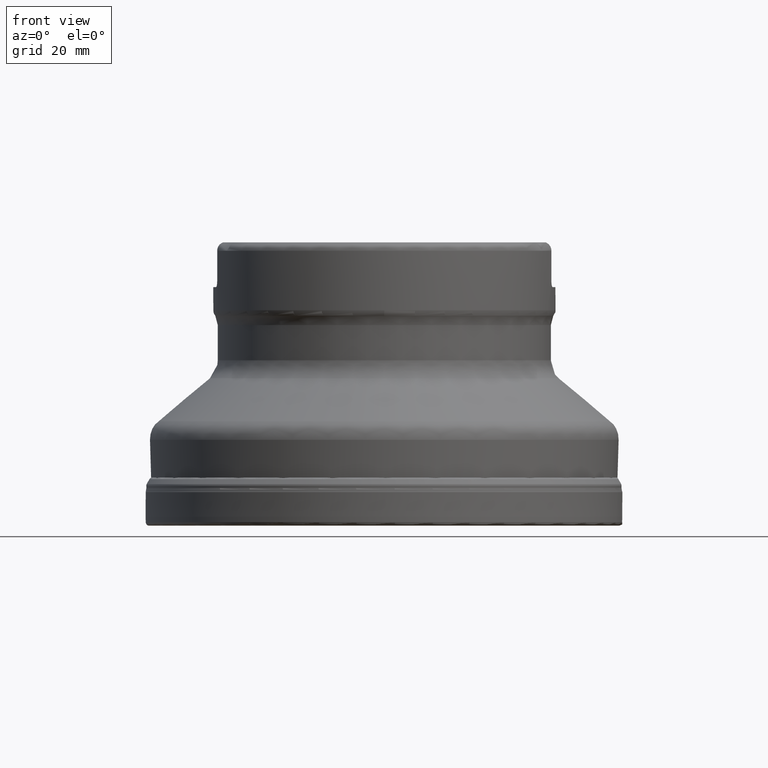
[diagram: clean part render]
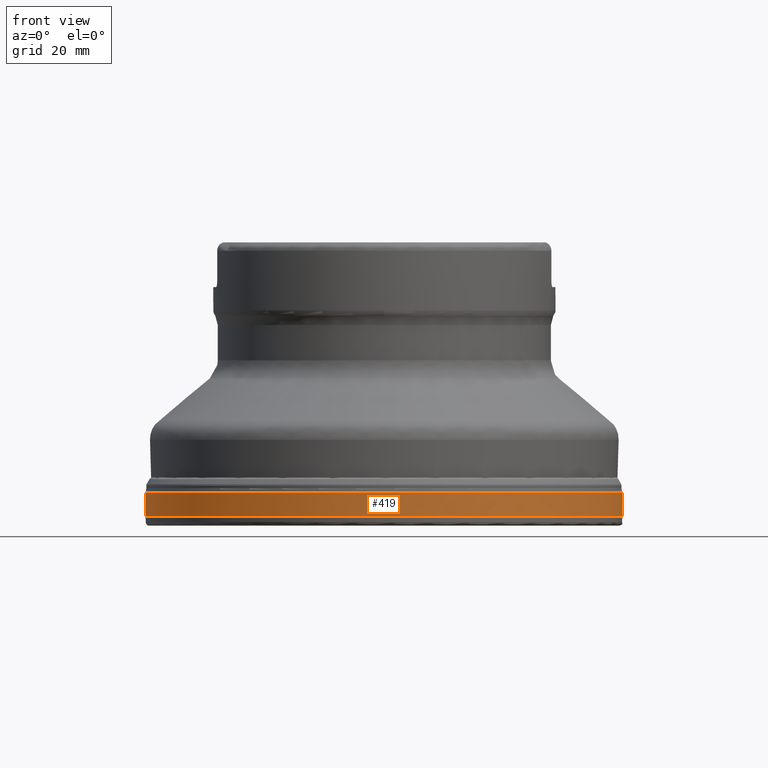
[diagram: same view with one face highlighted and labeled with its STEP entity id]
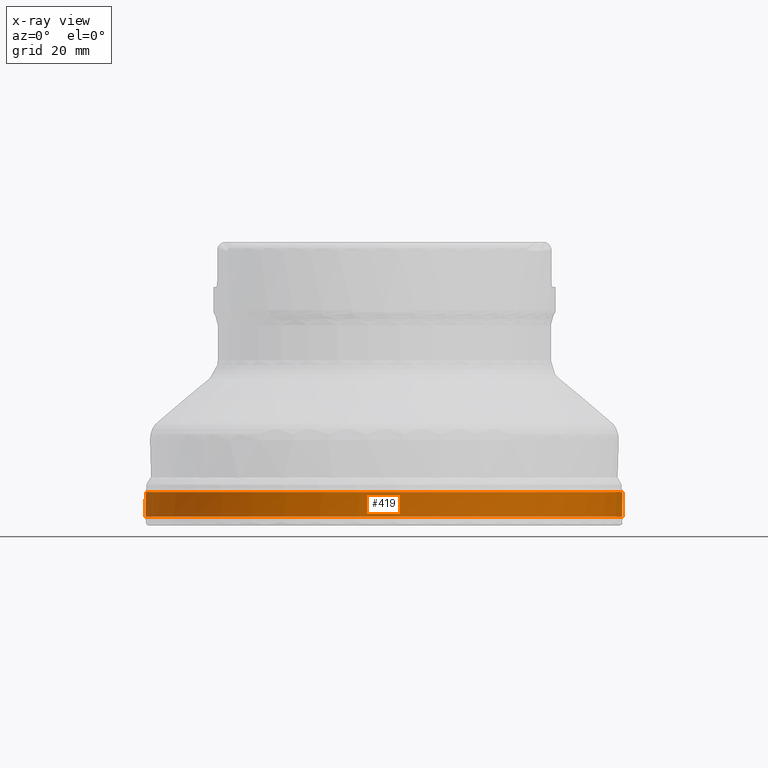
[diagram: x-ray of the same camera — body ghosted, the highlighted face saturated]
A machine part, front view. The second image highlights one B-rep face of the part: STEP entity #419.
The next image is the same camera in x-ray: the body ghosted, the highlighted face saturated — about 0% of this face is hidden behind the body in this view.
In plain terms, the highlighted face is a SurfaceOfRevolution surface.
Its self-contained STEP definition (entity closure, byte-faithful):
#114=SURFACE_OF_REVOLUTION('',#1178,#138);
#138=AXIS1_PLACEMENT('',#2350,#1565);
#240=FACE_BOUND('',#568,.T.);
#241=FACE_BOUND('',#569,.T.);
#419=ADVANCED_FACE('',(#240,#241),#114,.F.);
#568=EDGE_LOOP('',(#873));
#569=EDGE_LOOP('',(#874));
#653=CIRCLE('',#1300,50.7999999999999);
#654=CIRCLE('',#1301,50.8158812931104);
#873=ORIENTED_EDGE('',*,*,#1107,.T.);
#874=ORIENTED_EDGE('',*,*,#1108,.F.);
#988=VERTEX_POINT('',#2335);
#989=VERTEX_POINT('',#2343);
#1107=EDGE_CURVE('',#988,#988,#653,.T.);
#1108=EDGE_CURVE('',#989,#989,#654,.T.);
#1178=B_SPLINE_CURVE_WITH_KNOTS('',5,(#2344,#2345,#2346,#2347,#2348,#2349),
 .UNSPECIFIED.,.F.,.F.,(6,6),(0.,1.),.UNSPECIFIED.);
#1300=AXIS2_PLACEMENT_3D('',#2334,#1560,#1561);
#1301=AXIS2_PLACEMENT_3D('',#2342,#1563,#1564);
#1560=DIRECTION('',(0.,0.,-1.));
#1561=DIRECTION('',(-1.,0.,0.));
#1563=DIRECTION('',(0.,0.,-1.));
#1564=DIRECTION('',(-1.,0.,0.));
#1565=DIRECTION('',(0.,0.,-1.));
#2334=CARTESIAN_POINT('',(0.,0.,7.12762462990028));
#2335=CARTESIAN_POINT('',(-50.7999999999999,0.,7.12762462990028));
#2342=CARTESIAN_POINT('',(0.,0.,1.90566101479218));
#2343=CARTESIAN_POINT('',(-50.8158812931104,0.,1.90566101479218));
#2344=CARTESIAN_POINT('',(50.536757475087,-5.31882824438583,1.90566101600344));
#2345=CARTESIAN_POINT('',(50.5764975686581,-5.03904655547618,2.94960723736821));
#2346=CARTESIAN_POINT('',(50.6075199369795,-4.75919873984134,3.99386793357532));
#2347=CARTESIAN_POINT('',(50.6298720276227,-4.47930983729655,5.03834994570734));
#2348=CARTESIAN_POINT('',(50.6435638855175,-4.19940350443784,6.0829655707622));
#2349=CARTESIAN_POINT('',(50.6485684625299,-3.91950413909874,7.12762462990028));
#2350=CARTESIAN_POINT('',(0.,0.,0.));